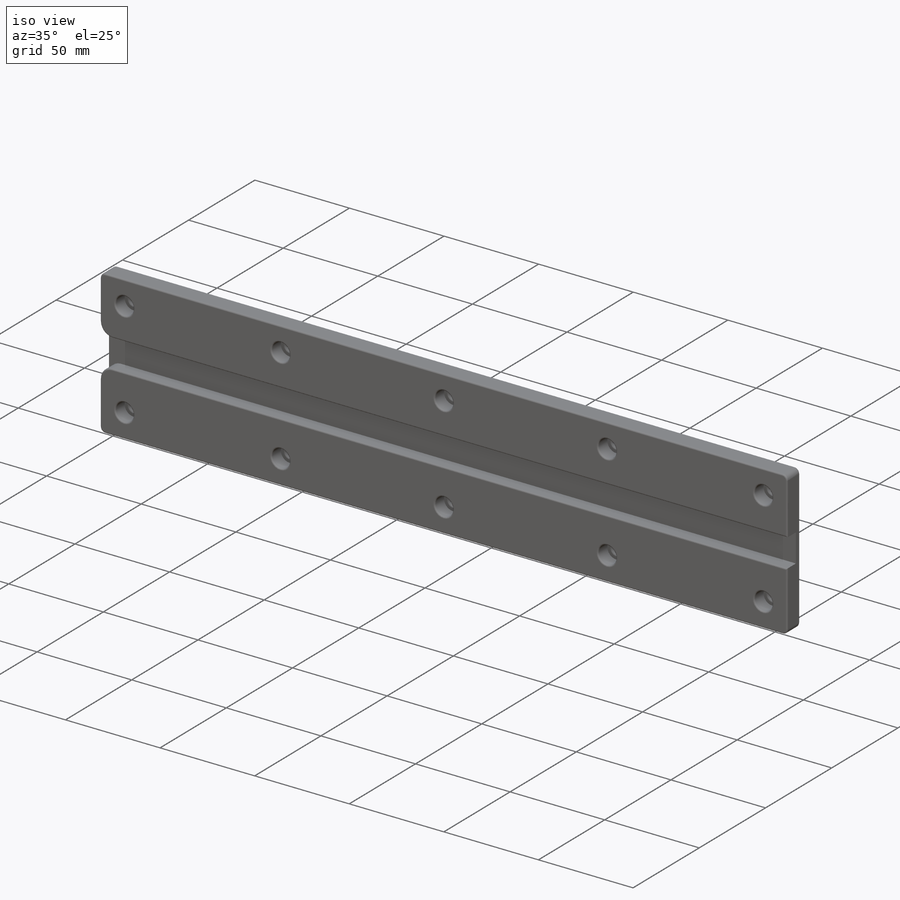
[diagram: iso view]
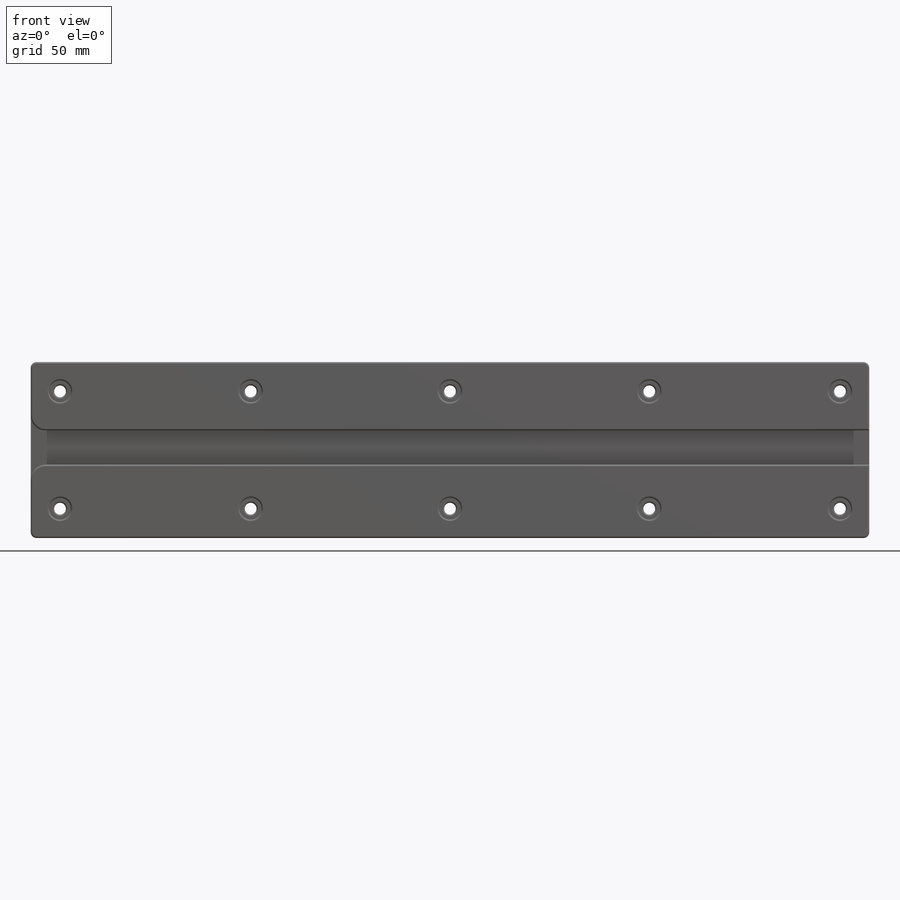
[diagram: front view]
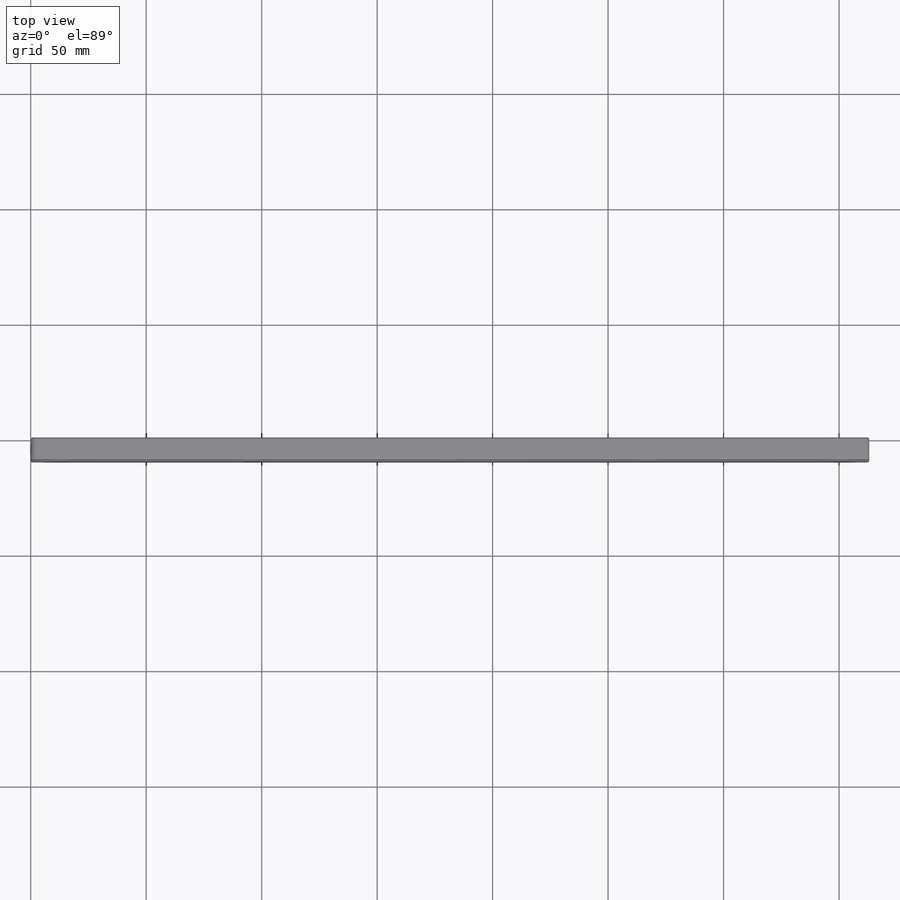
[diagram: top view]
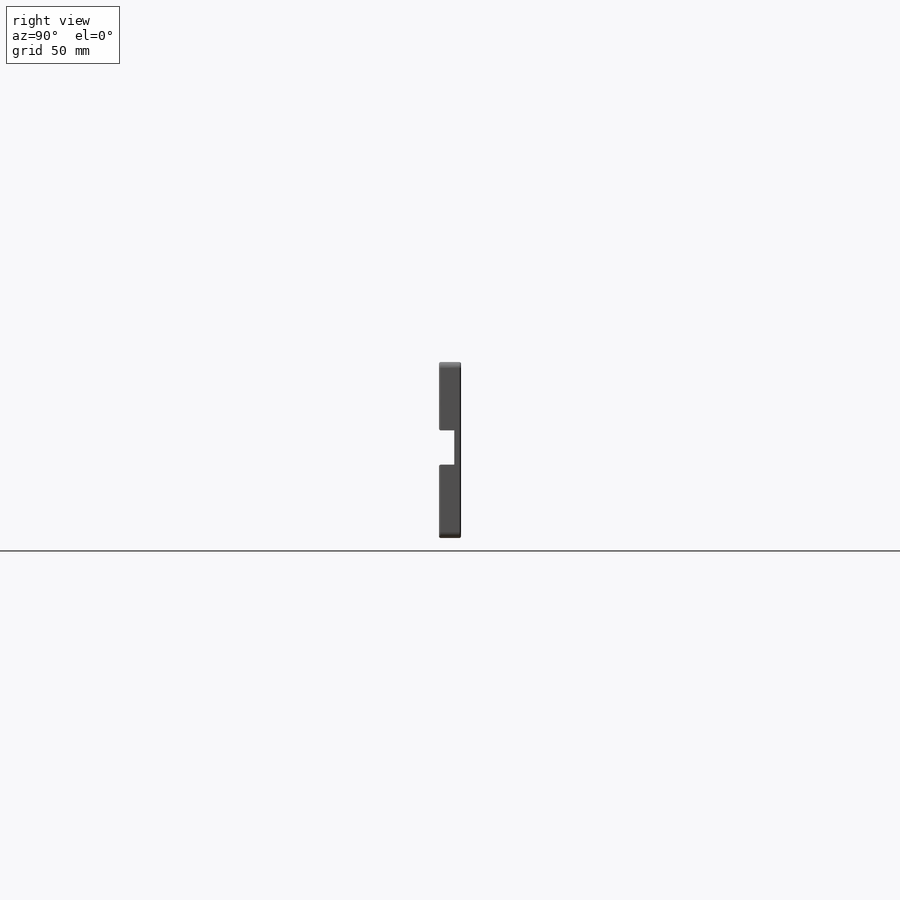
[diagram: right view]
SOLIDWORKS PART (.sldprt)
format: sldprt  version: not decoded by parser v0  size: 377,344 bytes
history: native  units: mm
features: sketch x5, fillet x3, material x1, extrude x1, cut_extrude x1, hole x1 (+15 scaffold rows collapsed)
feature tree (27):
  scaffold x15  (default folders/planes/origin — collapsed)
  material  "Material <not specified>"
  sketch  "Sketch1"  dims[D1=76.2mm D2=363.093mm]
  extrude  "Boss-Extrude1"  Depth=9.525mm
  sketch  "Sketch2"  dims[D1=14.859mm D2=31.75mm]
  cut_extrude  "Cut-Extrude1"  Depth=6.604mm
  fillet  "Fillet1"  Radius=6.35mm
  sketch  "Sketch3"  dims[D1=12.7mm D2=12.7mm D3=12.7mm D4=12.7mm D5=82.55mm D6=82.55mm]
  hole  "CBORE for #10 Socket Head Cap Screw1"  Diameter=5.1054mm Depth=9.525mm
  sketch  "3DSketch1"
  sketch  "Sketch4"  dims[hole-wizard template sketch: 42 standard entries collapsed; hole parameters kept: c12.Thru Hole Depth=9.525mm c12.C'Bore Dia.=9.525mm c12.C'Bore Depth=7.112mm]
  fillet  "Fillet2"  Radius=2.54mm
  fillet  "Fillet3"  Radius=0.762mm
decode coverage: 10 of 11 modeling features carry decoded parameters
note: ~ marks probable driven/reference dimensions
note: suppression state not decoded; provenance and decode notes live in map.json
